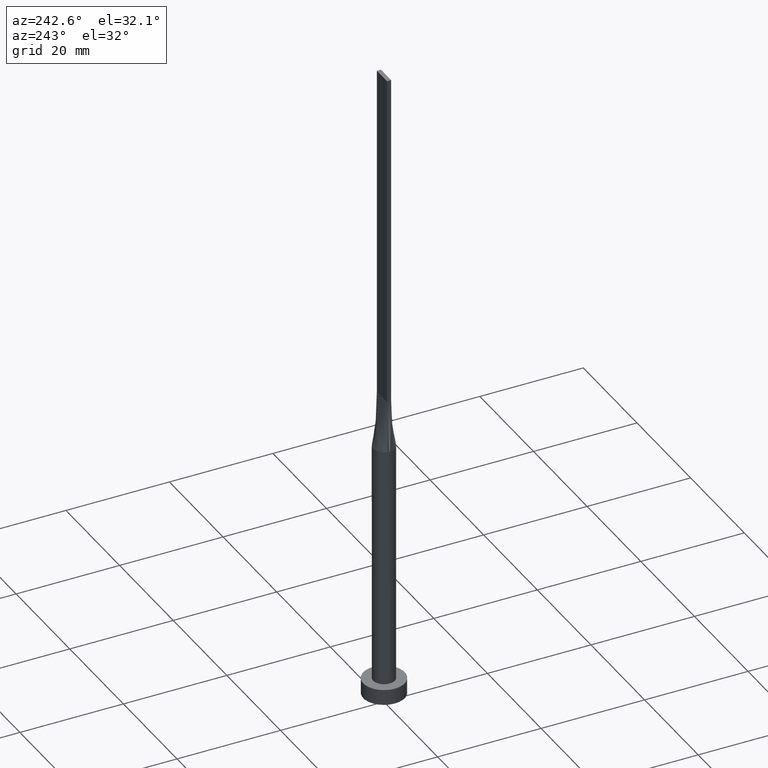
[diagram: clean part render]
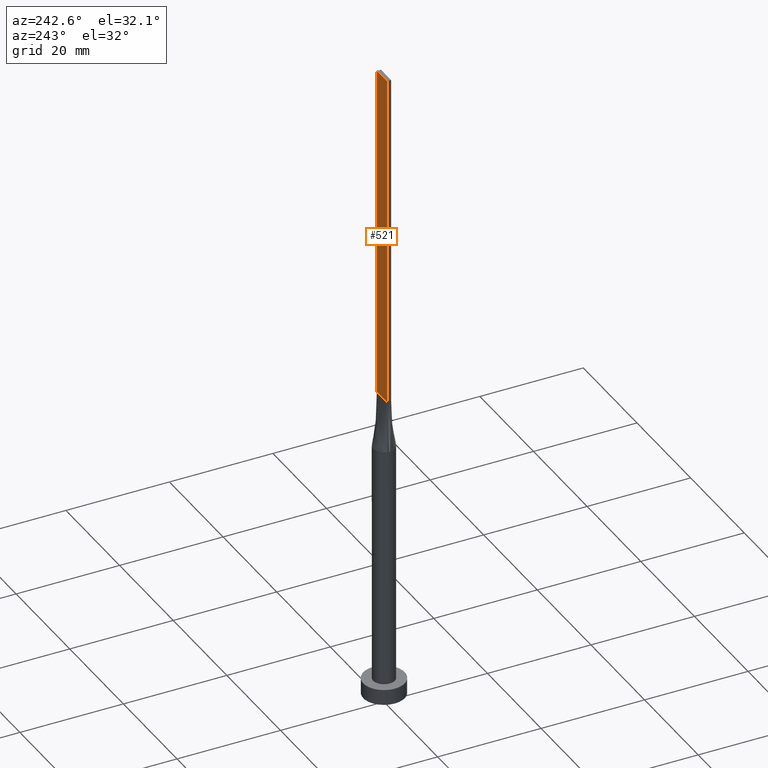
[diagram: same view with one face highlighted and labeled with its STEP entity id]
A machine part, auxiliary view. The second image highlights one B-rep face of the part: STEP entity #521.
In plain terms, the highlighted planar face has unit normal (0, -1, 0).
Its self-contained STEP definition (entity closure, byte-faithful):
#1 = LINE ( 'NONE', #446, #465 ) ;
#30 = EDGE_CURVE ( 'NONE', #573, #38, #221, .T. ) ;
#38 = VERTEX_POINT ( 'NONE', #286 ) ;
#40 = PLANE ( 'NONE',  #178 ) ;
#49 = DIRECTION ( 'NONE',  ( -0.000000000000000000, -0.000000000000000000, -1.000000000000000000 ) ) ;
#51 = LINE ( 'NONE', #370, #409 ) ;
#53 = LINE ( 'NONE', #415, #249 ) ;
#76 = VERTEX_POINT ( 'NONE', #193 ) ;
#97 = DIRECTION ( 'NONE',  ( -1.000000000000000000, 0.000000000000000000, 0.000000000000000000 ) ) ;
#128 = EDGE_LOOP ( 'NONE', ( #256, #490, #136, #295 ) ) ;
#136 = ORIENTED_EDGE ( 'NONE', *, *, #374, .F. ) ;
#178 = AXIS2_PLACEMENT_3D ( 'NONE', #311, #217, #396 ) ;
#193 = CARTESIAN_POINT ( 'NONE',  ( 1.899999999999999689, 0.4000000000000002442, 125.0000000000000000 ) ) ;
#217 = DIRECTION ( 'NONE',  ( 0.000000000000000000, -1.000000000000000000, 0.000000000000000000 ) ) ;
#221 = LINE ( 'NONE', #262, #532 ) ;
#249 = VECTOR ( 'NONE', #362, 1000.000000000000000 ) ;
#256 = ORIENTED_EDGE ( 'NONE', *, *, #482, .T. ) ;
#257 = CARTESIAN_POINT ( 'NONE',  ( -1.899999999999999689, 0.4000000000000002442, 125.0000000000000000 ) ) ;
#262 = CARTESIAN_POINT ( 'NONE',  ( -1.899999999999999689, 0.4000000000000002442, 125.0000000000000000 ) ) ;
#286 = CARTESIAN_POINT ( 'NONE',  ( -1.899999999999999689, 0.4000000000000002442, 60.00000000000000711 ) ) ;
#295 = ORIENTED_EDGE ( 'NONE', *, *, #479, .T. ) ;
#311 = CARTESIAN_POINT ( 'NONE',  ( 1.899999999999999689, 0.4000000000000002442, 125.0000000000000000 ) ) ;
#362 = DIRECTION ( 'NONE',  ( -1.000000000000000000, -0.000000000000000000, -0.000000000000000000 ) ) ;
#370 = CARTESIAN_POINT ( 'NONE',  ( 1.899999999999999689, 0.4000000000000002442, 125.0000000000000000 ) ) ;
#374 = EDGE_CURVE ( 'NONE', #76, #573, #1, .T. ) ;
#396 = DIRECTION ( 'NONE',  ( 0.000000000000000000, -0.000000000000000000, -1.000000000000000000 ) ) ;
#409 = VECTOR ( 'NONE', #49, 1000.000000000000000 ) ;
#415 = CARTESIAN_POINT ( 'NONE',  ( -1.899999999999999689, 0.4000000000000002442, 60.00000000000000711 ) ) ;
#446 = CARTESIAN_POINT ( 'NONE',  ( 1.899999999999999689, 0.4000000000000002442, 125.0000000000000000 ) ) ;
#465 = VECTOR ( 'NONE', #97, 1000.000000000000000 ) ;
#479 = EDGE_CURVE ( 'NONE', #76, #569, #51, .T. ) ;
#482 = EDGE_CURVE ( 'NONE', #569, #38, #53, .T. ) ;
#490 = ORIENTED_EDGE ( 'NONE', *, *, #30, .F. ) ;
#494 = FACE_OUTER_BOUND ( 'NONE', #128, .T. ) ;
#497 = DIRECTION ( 'NONE',  ( -0.000000000000000000, -0.000000000000000000, -1.000000000000000000 ) ) ;
#521 = ADVANCED_FACE ( 'NONE', ( #494 ), #40, .F. ) ;
#532 = VECTOR ( 'NONE', #497, 1000.000000000000000 ) ;
#541 = CARTESIAN_POINT ( 'NONE',  ( 1.899999999999999689, 0.4000000000000002442, 60.00000000000000711 ) ) ;
#569 = VERTEX_POINT ( 'NONE', #541 ) ;
#573 = VERTEX_POINT ( 'NONE', #257 ) ;